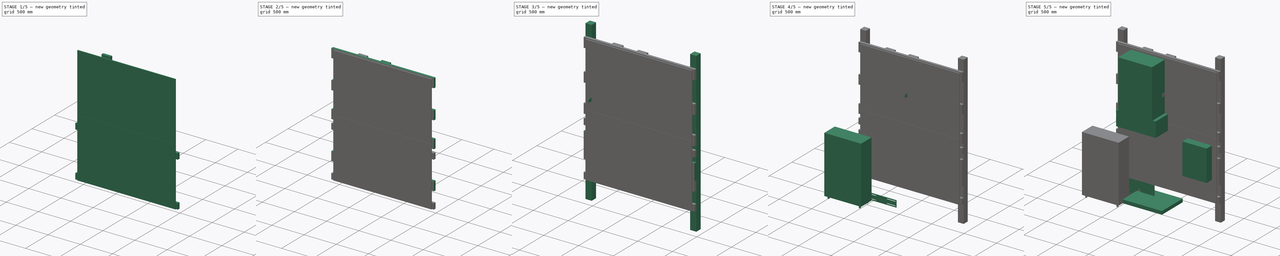
[diagram: build sequence overview — one tinted view per stage of 5, left to right]
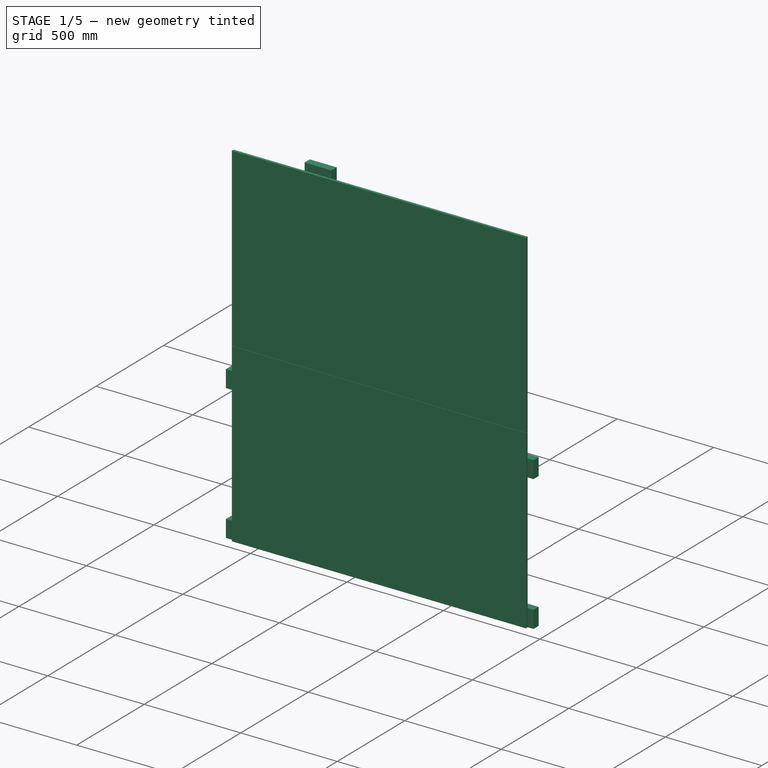
[diagram: stage 1 of 5 — iso view after this stage's code; geometry added in this stage tinted green]
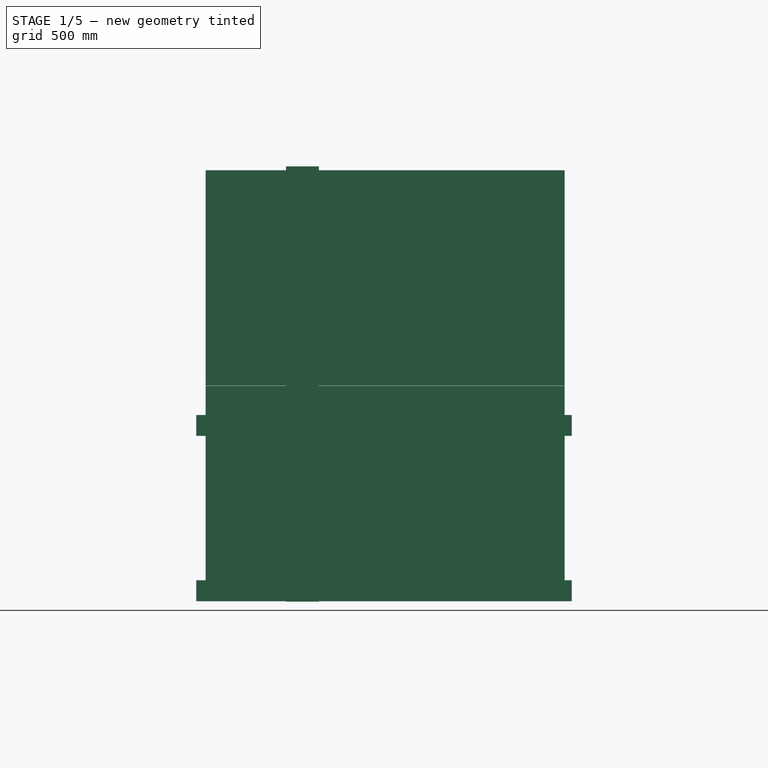
[diagram: stage 1 of 5 — front view after this stage's code; geometry added in this stage tinted green]
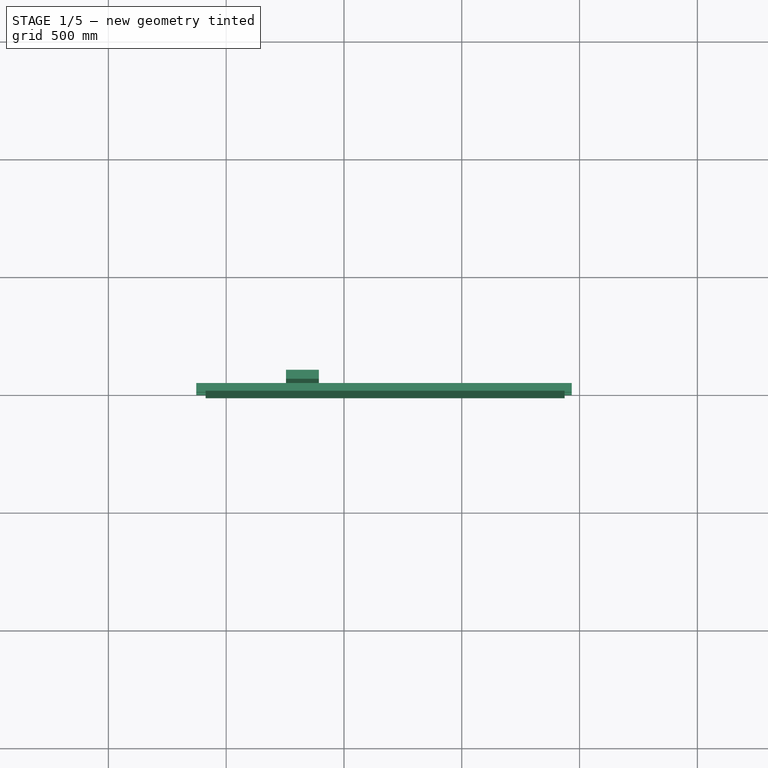
[diagram: stage 1 of 5 — top view after this stage's code; geometry added in this stage tinted green]
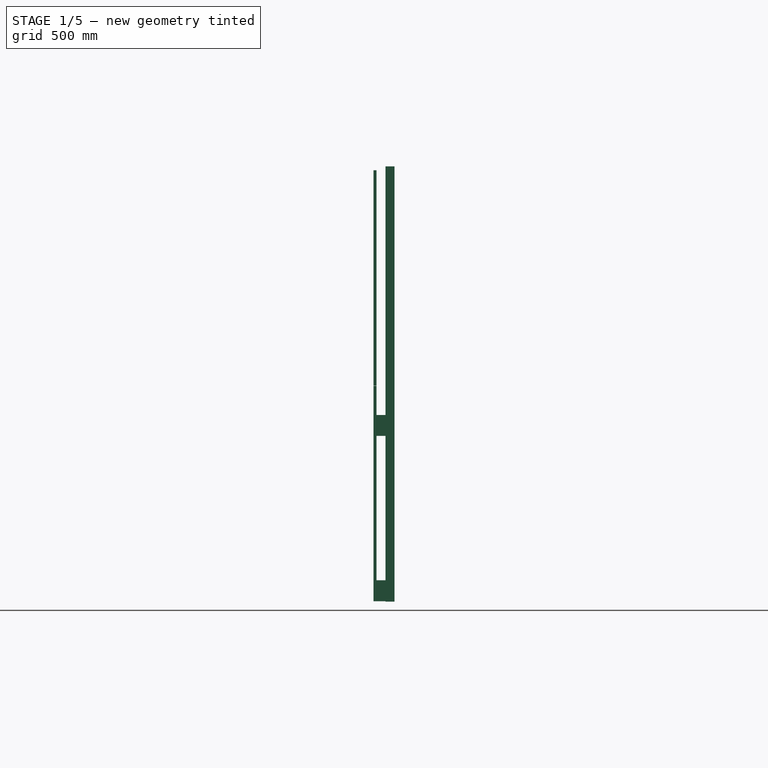
[diagram: stage 1 of 5 — right view after this stage's code; geometry added in this stage tinted green]
FCSTD DOCUMENT  (FreeCAD 1.0R39319 (Git))
Label: ESSandPVMount1
License: All rights reserved
LicenseURL: https://en.wikipedia.org/wiki/All_rights_reserved
objects: Part::Box×18, Sketcher::SketchObject×6, PartDesign::Pad×6, PartDesign::Body×4, App::DocumentObjectGroup×4, Part::Mirroring×1, App::LinkGroup×1
note: 53 computed .brp shape members not serialized (recipe doc carries the construction recipe); baked Part::Feature solids carry a one-line shape summary decoded from their .brp

FEATURE [Part::Box] Box010  label="Duraback3x5-1"
  AttacherType = Attacher::AttachEngine3D
  Height = 1524
  Length = 914.4
  Placement = pos=(-87.376,-12.7,1215.64) rot=(0,1,0;1.5708rad)
  Width = 12.7
FEATURE [Part::Box] Box011  label="Duraback3x5-2"
  AttacherType = Attacher::AttachEngine3D
  Height = 1524
  Length = 914.4
  Placement = pos=(-87.376,-12.7,2131.06) rot=(0,1,0;1.5708rad)
  Width = 12.7
FEATURE [Part::Box] Box018  label="Vert2x6-2"
  AttacherType = Attacher::AttachEngine3D
  Height = 139.7
  Length = 1847.85
  Placement = pos=(393.7,38.1,299.72) rot=(0,1,0;4.71239rad)
  Width = 38.1
FEATURE [Part::Box] Box019  label="Horiz2x4-2"
  AttacherType = Attacher::AttachEngine3D
  Height = 88.9
  Length = 1593.85
  Placement = pos=(-127,0,301.625) rot=(0,0,1;0rad)
  Width = 38.1
FEATURE [App::DocumentObjectGroup] Group  label="ESSAssembly"
  Group = -> [Box004,Box003,Body001,Body,Body002,Body003,Part__Mirroring001]
FEATURE [App::LinkGroup] LinkGroup  label="BatteryInverterLinkGroup"
  ElementList = -> [Group]
  LinkMode = 0
  Placement = pos=(127,-12.7,-5.08) rot=(0,0,1;0rad)
FEATURE [App::DocumentObjectGroup] Group003  label="Sheetrock"
  Group = -> [Box010,Box011]
FEATURE [Part::Box] Box020  label="Horiz2x4-003"
  AttacherType = Attacher::AttachEngine3D
  Height = 88.9
  Length = 1593.85
  Placement = pos=(-127,0,1003.3) rot=(0,0,1;0rad)
  Width = 38.1
FEATURE [App::DocumentObjectGroup] Group002  label="WoodMembers"
  Group = -> [Box,Box001,Box007,Box012,Box013,Box014,Box015,Box016,Box017,Box018,Box019,Box020]
FEATURE [App::DocumentObjectGroup] Group001  label="WoodFrame"
  Group = -> [Group002]
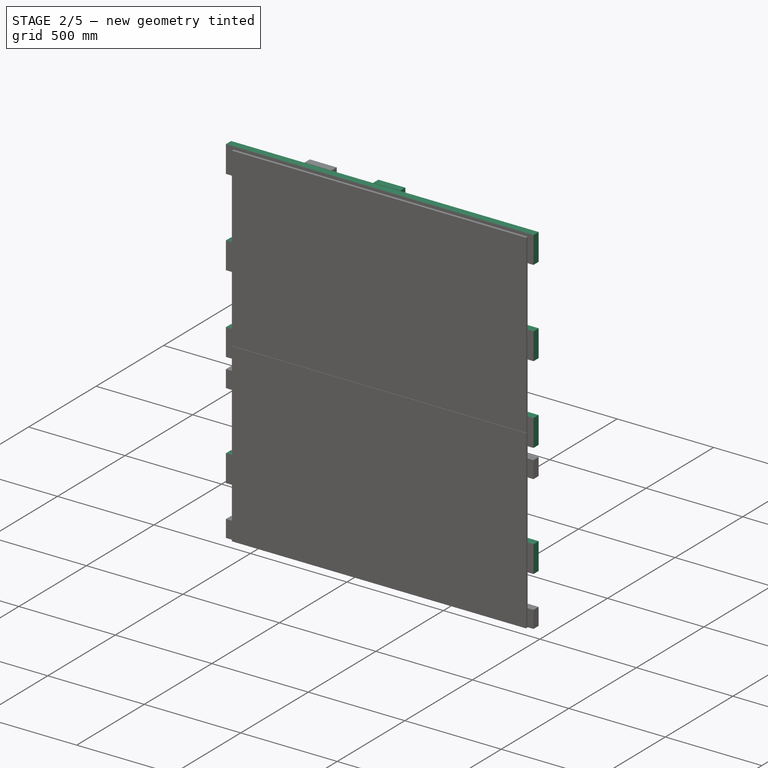
[diagram: stage 2 of 5 — iso view after this stage's code; geometry added in this stage tinted green]
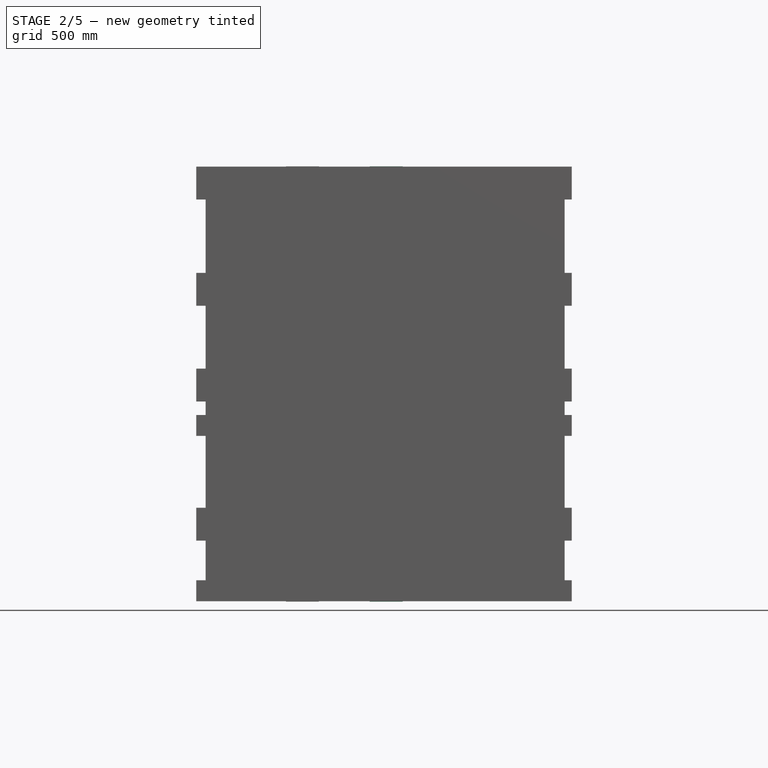
[diagram: stage 2 of 5 — front view after this stage's code; geometry added in this stage tinted green]
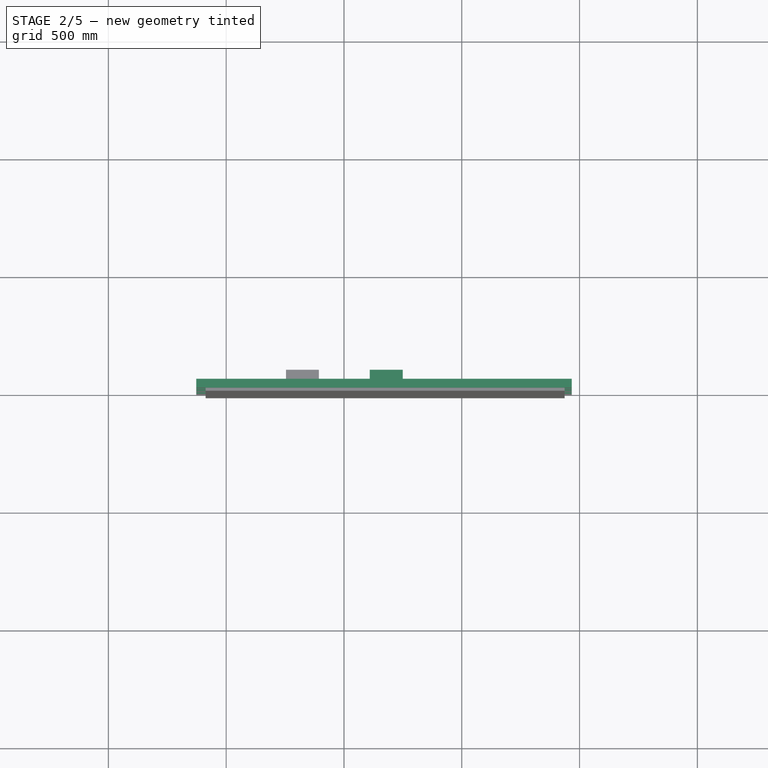
[diagram: stage 2 of 5 — top view after this stage's code; geometry added in this stage tinted green]
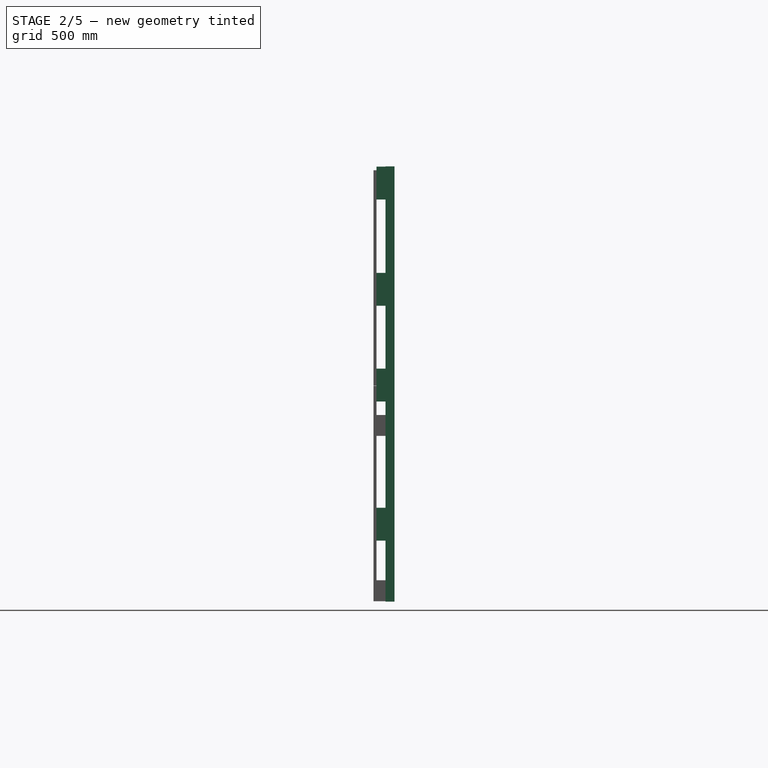
[diagram: stage 2 of 5 — right view after this stage's code; geometry added in this stage tinted green]
FEATURE [Part::Box] Box013  label="Horiz2x6-2"
  AttacherType = Attacher::AttachEngine3D
  Height = 139.7
  Length = 1593.85
  Placement = pos=(-127,0,558.8) rot=(0,0,1;0rad)
  Width = 38.1
FEATURE [PartDesign::Body] Body002  label="InverterMountingPlate"
  AllowCompound = false
  Group = -> [Sketch003,Pad003]
  Origin = -> Origin002
  Placement = pos=(147.32,0,2024.38) rot=(0,0,1;0rad)
  Tip = -> Pad003
FEATURE [Part::Box] Box014  label="Horiz2x6-3"
  AttacherType = Attacher::AttachEngine3D
  Height = 139.7
  Length = 1593.85
  Placement = pos=(-127,0,2006.6) rot=(0,0,1;0rad)
  Width = 38.1
FEATURE [Part::Box] Box015  label="Horiz2x6-4"
  AttacherType = Attacher::AttachEngine3D
  Height = 139.7
  Length = 1593.85
  Placement = pos=(-127,0,1555.75) rot=(0,0,1;0rad)
  Width = 38.1
FEATURE [Part::Box] Box016  label="Horiz2x6-5"
  AttacherType = Attacher::AttachEngine3D
  Height = 139.7
  Length = 1593.85
  Placement = pos=(-127,0,1149.35) rot=(0,0,1;0rad)
  Width = 38.1
FEATURE [PartDesign::Body] Body003  label="InverterLowerBracket"
  AllowCompound = false
  Group = -> [Sketch004,Pad004,Sketch005,Pad005]
  Origin = -> Origin003
  Placement = pos=(111.76,19.05,241.3) rot=(0,0,1;0rad)
  Tip = -> Pad005
FEATURE [Part::Box] Box017  label="Vert2x6-1"
  AttacherType = Attacher::AttachEngine3D
  Height = 139.7
  Length = 1847.85
  Placement = pos=(749.3,38.1,299.72) rot=(0,1,0;4.71239rad)
  Width = 38.1
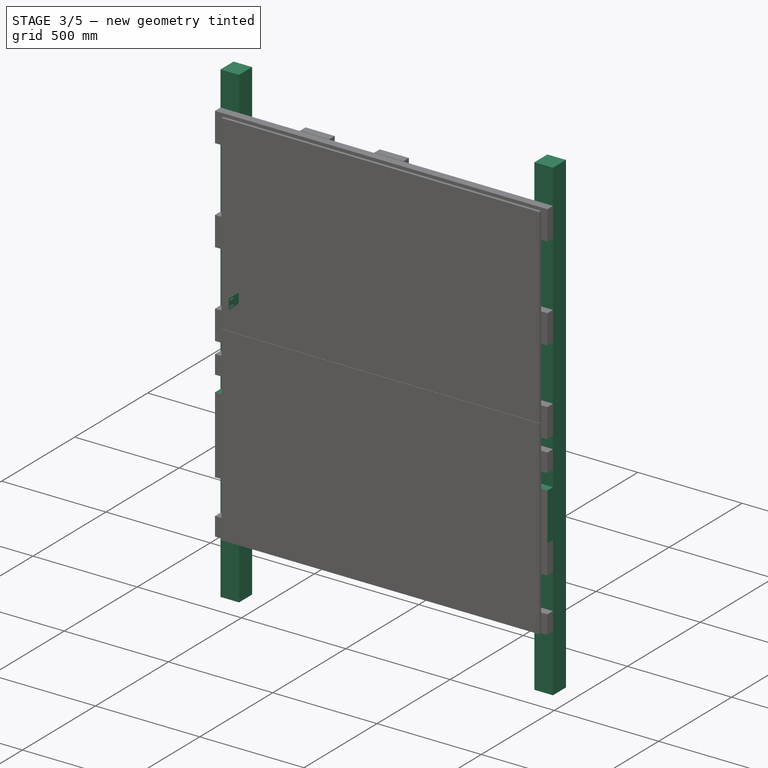
[diagram: stage 3 of 5 — iso view after this stage's code; geometry added in this stage tinted green]
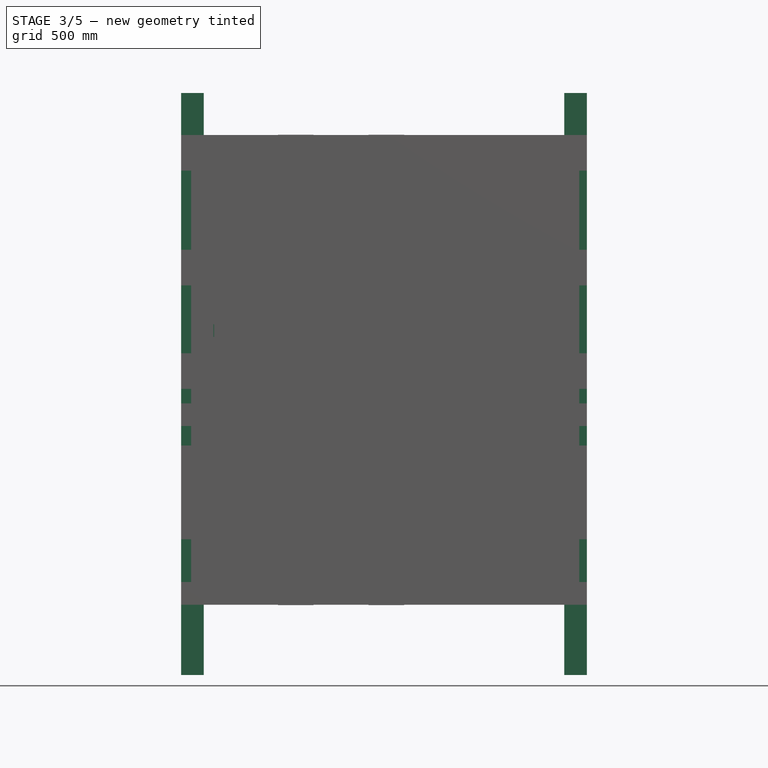
[diagram: stage 3 of 5 — front view after this stage's code; geometry added in this stage tinted green]
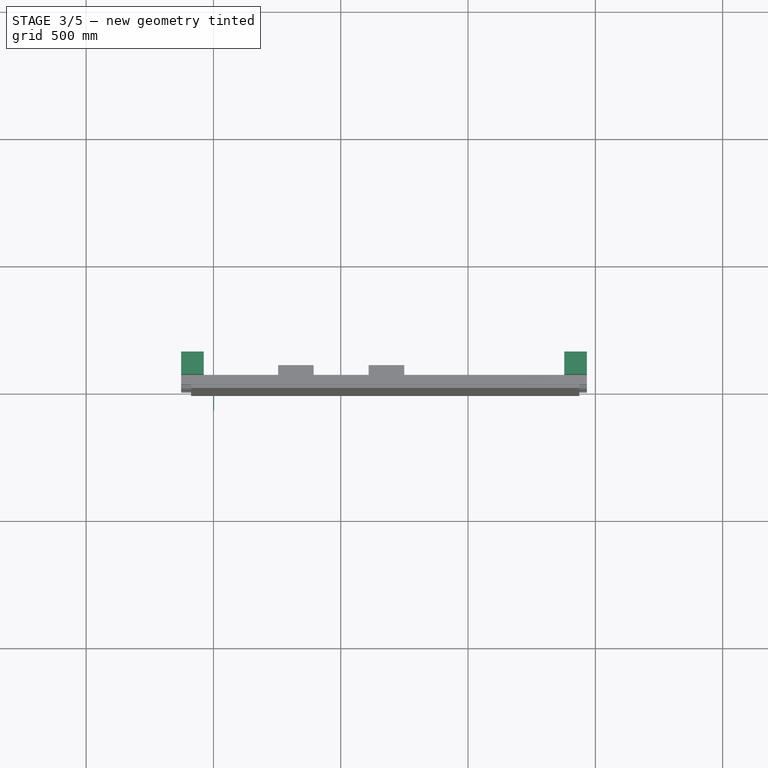
[diagram: stage 3 of 5 — top view after this stage's code; geometry added in this stage tinted green]
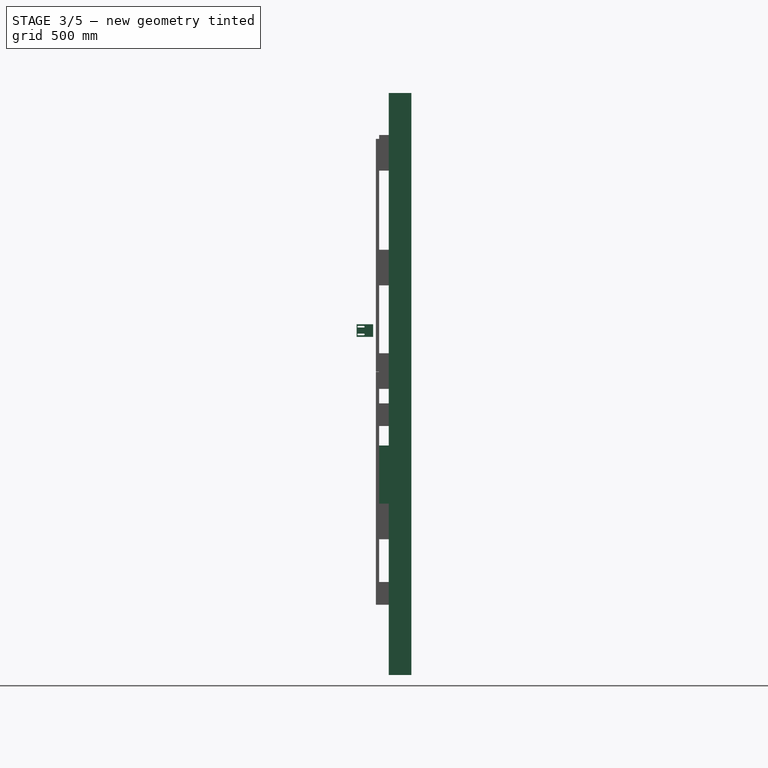
[diagram: stage 3 of 5 — right view after this stage's code; geometry added in this stage tinted green]
FEATURE [Part::Box] Box  label="Post1"
  AttacherType = Attacher::AttachEngine3D
  Height = 2286
  Length = 88.9
  Placement = pos=(-127,38.1,25.4) rot=(0,0,1;0rad)
  Width = 88.9
FEATURE [Part::Box] Box001  label="Post002"
  AttacherType = Attacher::AttachEngine3D
  Height = 2286
  Length = 88.9
  Placement = pos=(1377.95,38.1,25.4) rot=(0,0,1;0rad)
  Width = 88.9
FEATURE [PartDesign::Body] Body001  label="Battery001"
  AllowCompound = false
  Group = -> [Sketch001,Pad001,Sketch002,Pad002]
  Origin = -> Origin001
  Placement = pos=(577.85,0,241.3) rot=(0,0,1;0rad)
  Tip = -> Pad002
FEATURE [Part::Box] Box007  label="Horiz2x6-1"
  AttacherType = Attacher::AttachEngine3D
  Height = 139.7
  Length = 1593.85
  Placement = pos=(-127,0,787.4) rot=(0,0,1;0rad)
  Width = 38.1
FEATURE [Part::Box] Box012  label="Horiz2x4-1"
  AttacherType = Attacher::AttachEngine3D
  Height = 88.9
  Length = 1593.85
  Placement = pos=(-127,0,698.5) rot=(0,0,1;0rad)
  Width = 38.1
FEATURE [Sketcher::SketchObject] Sketch004
  ArcFitTolerance = 1e-06
  AttachmentSupport = -> [YZ_Plane003]
  FullyConstrained = false
  MakeInternals = false
  MapMode = 5
  Placement = pos=(0,0,0) rot=(0.57735,0.57735,0.57735;2.0944rad)
  sketch-geometry (12):
    g0: LineSegment StartX=-23.449 StartY=1353.66 StartZ=0 EndX=-23.449 EndY=1402.88 EndZ=0
    g1: LineSegment StartX=-23.449 StartY=1402.88 StartZ=0 EndX=-88.473 EndY=1402.88 EndZ=0
    g2: LineSegment StartX=-88.473 StartY=1402.88 StartZ=0 EndX=-88.473 EndY=1353.66 EndZ=0
    g3: LineSegment StartX=-88.473 StartY=1353.66 StartZ=0 EndX=-23.449 EndY=1353.66 EndZ=0
    g4: ArcOfCircle CenterX=-82.123 CenterY=1393.35 CenterZ=0 NormalX=0 NormalY=0 NormalZ=1 AngleXU=0 Radius=3.175 StartAngle=1.5708 EndAngle=4.71239
    g5: ArcOfCircle CenterX=-59.898 CenterY=1393.35 CenterZ=0 NormalX=0 NormalY=0 NormalZ=1 AngleXU=0 Radius=3.175 StartAngle=4.71239 EndAngle=7.85398
    g6: LineSegment StartX=-82.123 StartY=1396.53 StartZ=0 EndX=-59.898 EndY=1396.53 EndZ=0
    g7: LineSegment StartX=-82.123 StartY=1390.18 StartZ=0 EndX=-59.898 EndY=1390.18 EndZ=0
    g8: ArcOfCircle CenterX=-82.123 CenterY=1363.19 CenterZ=0 NormalX=0 NormalY=0 NormalZ=1 AngleXU=0 Radius=3.175 StartAngle=1.5708 EndAngle=4.71239
    g9: ArcOfCircle CenterX=-59.898 CenterY=1363.19 CenterZ=0 NormalX=0 NormalY=0 NormalZ=1 AngleXU=0 Radius=3.175 StartAngle=4.71239 EndAngle=7.85398
    g10: LineSegment StartX=-82.123 StartY=1366.36 StartZ=0 EndX=-59.898 EndY=1366.36 EndZ=0
    g11: LineSegment StartX=-82.123 StartY=1360.01 StartZ=0 EndX=-59.898 EndY=1360.01 EndZ=0
  constraints (30):
    c: Coincident(g0,g1)
    c: Coincident(g1,g2)
    c: Coincident(g2,g3)
    c: Coincident(g3,g0)
    c: Vertical(g0)
    c: Vertical(g2)
    c: Horizontal(g1)
    c: Horizontal(g3)
    c: DistanceX(g1,g1) = 65.024
    c: DistanceY(g2,g2) = 49.2125
    c: Tangent(g4,g6) = 1.5708
    c: Tangent(g4,g7) = -1.5708
    c: Tangent(g5,g6) = 1.5708
    c: Tangent(g5,g7) = -1.5708
    c: Equal(g4,g5)
    c: Horizontal(g7)
    c: DistanceX(g4,g5) = 22.225
    c: DistanceX(g1,g4) = 6.35
    c: DistanceY(g4,g1) = 6.35
    c: DistanceY(g4,g1) = 12.7
    c: Tangent(g8,g10) = 1.5708
    c: Tangent(g8,g11) = -1.5708
    c: Tangent(g9,g10) = 1.5708
    c: Tangent(g9,g11) = -1.5708
    c: Equal(g8,g9)
    c: Horizontal(g11)
    c: DistanceX(g8,g9) = 22.225
    c: DistanceY(g2,g8) = 12.7
    c: DistanceY(g2,g8) = 6.35
    c: DistanceX(g2,g8) = 6.35
FEATURE [PartDesign::Pad] Pad004
  Direction = (1,0,0)
  Length = 2.54
  Length2 = 10
  Placement = pos=(0,0,0) rot=(1,1,1;2.0944rad)
  Profile = -> Sketch004
  ReferenceAxis = -> Sketch004 [N_Axis]
  Refine = true
  Suppressed = false
  Type = 0
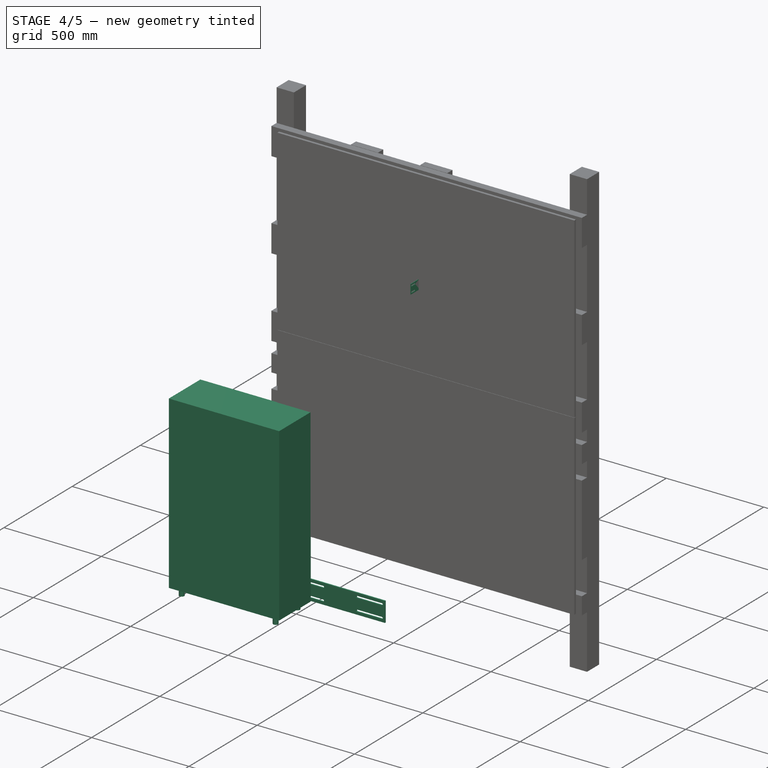
[diagram: stage 4 of 5 — iso view after this stage's code; geometry added in this stage tinted green]
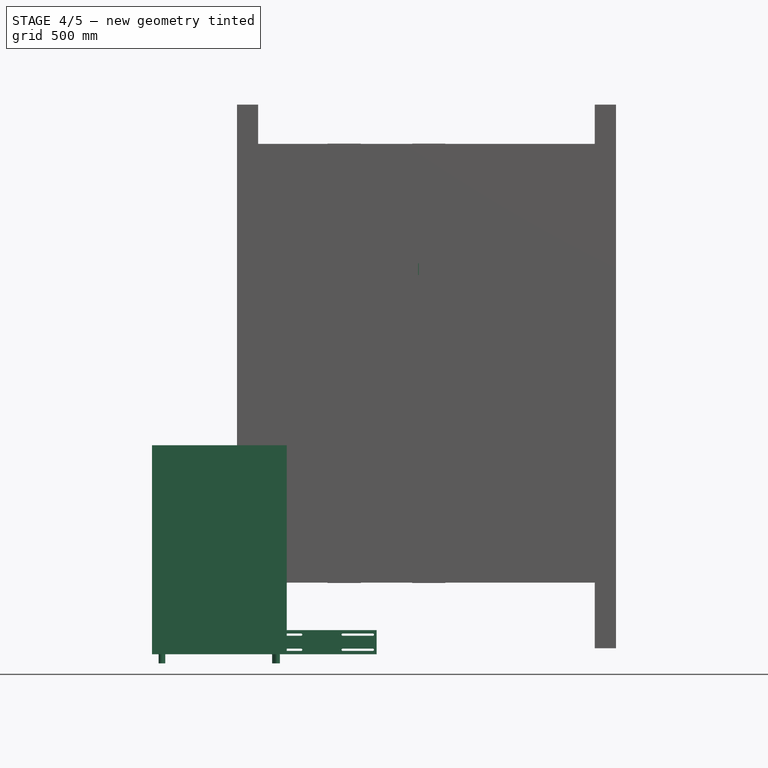
[diagram: stage 4 of 5 — front view after this stage's code; geometry added in this stage tinted green]
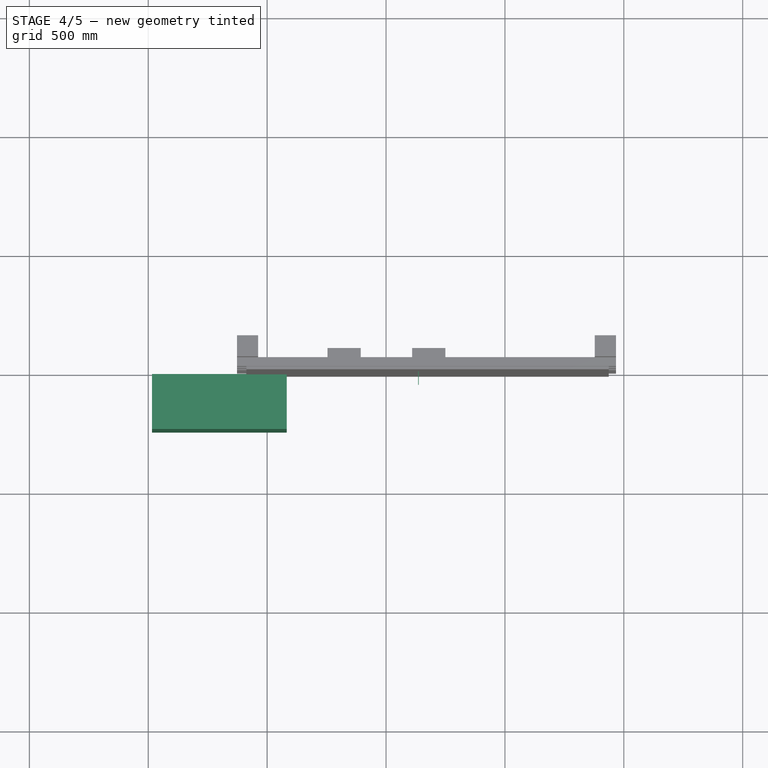
[diagram: stage 4 of 5 — top view after this stage's code; geometry added in this stage tinted green]
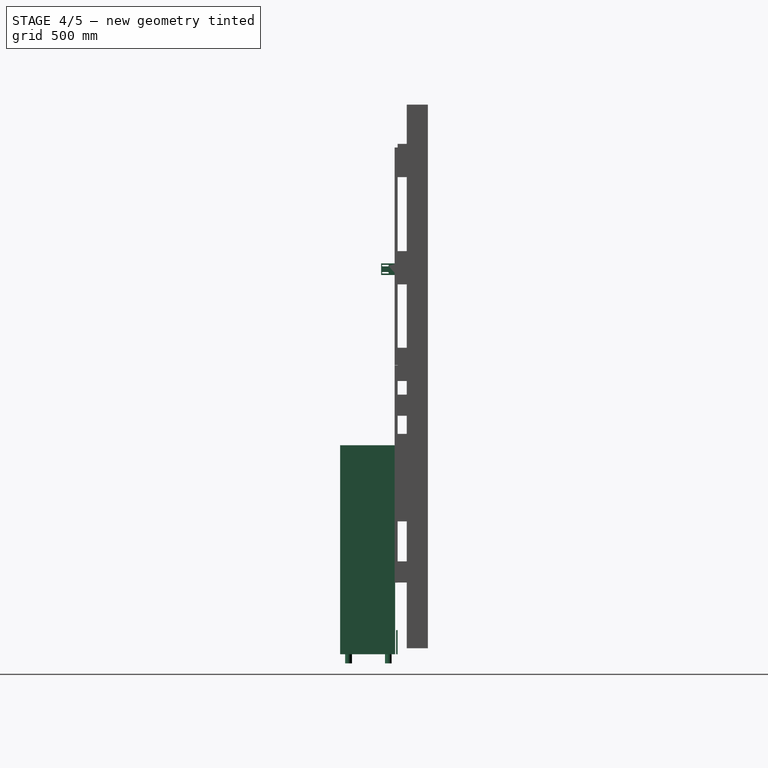
[diagram: stage 4 of 5 — right view after this stage's code; geometry added in this stage tinted green]
FEATURE [PartDesign::Body] Body  label="BatteryMountingPlate"
  AllowCompound = false
  Group = -> [Sketch,Pad]
  Origin = -> Origin
  Placement = pos=(139.7,0,440.69) rot=(0,0,1;0rad)
  Tip = -> Pad
FEATURE [Sketcher::SketchObject] Sketch001
  ArcFitTolerance = 1e-06
  AttachmentSupport = -> [XY_Plane001]
  FullyConstrained = false
  MakeInternals = false
  MapMode = 5
  sketch-geometry (4):
    g0: LineSegment StartX=82.3802 StartY=-10.9149 StartZ=0 EndX=-484.04 EndY=-10.9149 EndZ=0
    g1: LineSegment StartX=-484.04 StartY=-10.9149 StartZ=0 EndX=-484.04 EndY=-242.055 EndZ=0
    g2: LineSegment StartX=-484.04 StartY=-242.055 StartZ=0 EndX=82.3802 EndY=-242.055 EndZ=0
    g3: LineSegment StartX=82.3802 StartY=-242.055 StartZ=0 EndX=82.3802 EndY=-10.9149 EndZ=0
  constraints (10):
    c: Coincident(g0,g1)
    c: Coincident(g1,g2)
    c: Coincident(g2,g3)
    c: Coincident(g3,g0)
    c: Horizontal(g0)
    c: Horizontal(g2)
    c: Vertical(g1)
    c: Vertical(g3)
    c: DistanceX(g2,g2) = 566.42
    c: DistanceY(g1,g1) = 231.14
FEATURE [PartDesign::Pad] Pad001
  Direction = (0,0,1)
  Length = 878.84
  Length2 = 10
  Profile = -> Sketch001
  ReferenceAxis = -> Sketch001 [N_Axis]
  Refine = true
  Suppressed = false
  Type = 0
FEATURE [Sketcher::SketchObject] Sketch002
  ArcFitTolerance = 1e-06
  AttachmentSupport = -> [Pad001]
  FullyConstrained = false
  MakeInternals = false
  MapMode = 5
  Placement = pos=(0,0,0) rot=(1,0,0;3.14159rad)
  sketch-geometry (4):
    g0: Circle CenterX=-443.812 CenterY=204.743 CenterZ=0 NormalX=0 NormalY=0 NormalZ=1 AngleXU=0 Radius=12.7
    g1: Circle CenterX=-441.406 CenterY=40.3856 CenterZ=0 NormalX=0 NormalY=0 NormalZ=1 AngleXU=0 Radius=12.7
    g2: Circle CenterX=40.8128 CenterY=208.315 CenterZ=0 NormalX=0 NormalY=0 NormalZ=1 AngleXU=0 Radius=12.7
    g3: Circle CenterX=33.3659 CenterY=38.1016 CenterZ=0 NormalX=0 NormalY=0 NormalZ=1 AngleXU=0 Radius=12.7
  constraints (4):
    c: Diameter(g0) = 25.4
    c: Diameter(g1) = 25.4
    c: Diameter(g2) = 25.4
    c: Diameter(g3) = 25.4
FEATURE [PartDesign::Pad] Pad002
  BaseFeature = -> Pad001
  Direction = (0,0,-1)
  Length = 38.1
  Length2 = 10
  Profile = -> Sketch002
  ReferenceAxis = -> Sketch002 [N_Axis]
  Refine = true
  Suppressed = false
  Type = 0
FEATURE [Sketcher::SketchObject] Sketch003
  ArcFitTolerance = 1e-06
  AttachmentSupport = -> [XZ_Plane002]
  FullyConstrained = true
  MakeInternals = false
  MapMode = 5
  Placement = pos=(0,0,0) rot=(1,0,0;1.5708rad)
  sketch-geometry (20):
    g0: LineSegment StartX=0 StartY=0 StartZ=0 EndX=460.375 EndY=0 EndZ=0
    g1: LineSegment StartX=460.375 StartY=0 StartZ=0 EndX=460.375 EndY=101.6 EndZ=0
    g2: LineSegment StartX=460.375 StartY=101.6 StartZ=0 EndX=0 EndY=101.6 EndZ=0
    g3: LineSegment StartX=0 StartY=101.6 StartZ=0 EndX=0 EndY=0 EndZ=0
    g4: ArcOfCircle CenterX=15.875 CenterY=19.05 CenterZ=0 NormalX=0 NormalY=0 NormalZ=1 AngleXU=0 Radius=4.7625 StartAngle=1.5708 EndAngle=4.71239
    g5: ArcOfCircle CenterX=142.875 CenterY=19.05 CenterZ=0 NormalX=0 NormalY=0 NormalZ=1 AngleXU=0 Radius=4.7625 StartAngle=4.71239 EndAngle=7.85398
    g6: LineSegment StartX=15.875 StartY=23.8125 StartZ=0 EndX=142.875 EndY=23.8125 EndZ=0
    g7: LineSegment StartX=15.875 StartY=14.2875 StartZ=0 EndX=142.875 EndY=14.2875 EndZ=0
    g8: ArcOfCircle CenterX=15.875 CenterY=82.55 CenterZ=0 NormalX=0 NormalY=0 NormalZ=1 AngleXU=0 Radius=4.7625 StartAngle=1.5708 EndAngle=4.71239
    g9: ArcOfCircle CenterX=142.875 CenterY=82.55 CenterZ=0 NormalX=0 NormalY=0 NormalZ=1 AngleXU=0 Radius=4.7625 StartAngle=4.71239 EndAngle=7.85398
    g10: LineSegment StartX=15.875 StartY=87.3125 StartZ=0 EndX=142.875 EndY=87.3125 EndZ=0
    g11: LineSegment StartX=15.875 StartY=77.7875 StartZ=0 EndX=142.875 EndY=77.7875 EndZ=0
    g12: ArcOfCircle CenterX=317.5 CenterY=19.05 CenterZ=0 NormalX=0 NormalY=0 NormalZ=1 AngleXU=0 Radius=4.7625 StartAngle=1.5708 EndAngle=4.71239
    g13: ArcOfCircle CenterX=444.5 CenterY=19.05 CenterZ=0 NormalX=0 NormalY=0 NormalZ=1 AngleXU=0 Radius=4.7625 StartAngle=4.71239 EndAngle=7.85398
    g14: LineSegment StartX=317.5 StartY=23.8125 StartZ=0 EndX=444.5 EndY=23.8125 EndZ=0
    g15: LineSegment StartX=317.5 StartY=14.2875 StartZ=0 EndX=444.5 EndY=14.2875 EndZ=0
    g16: ArcOfCircle CenterX=317.5 CenterY=82.55 CenterZ=0 NormalX=0 NormalY=0 NormalZ=1 AngleXU=0 Radius=4.7625 StartAngle=1.5708 EndAngle=4.71239
    g17: ArcOfCircle CenterX=444.5 CenterY=82.55 CenterZ=0 NormalX=0 NormalY=0 NormalZ=1 AngleXU=0 Radius=4.7625 StartAngle=4.71239 EndAngle=7.85398
    g18: LineSegment StartX=317.5 StartY=87.3125 StartZ=0 EndX=444.5 EndY=87.3125 EndZ=0
    g19: LineSegment StartX=317.5 StartY=77.7875 StartZ=0 EndX=444.5 EndY=77.7875 EndZ=0
  constraints (51):
    c: Coincident(g0,g1)
    c: Coincident(g1,g2)
    c: Coincident(g2,g3)
    c: Coincident(g3,g0)
    c: Horizontal(g0)
    c: Horizontal(g2)
    c: Vertical(g1)
    c: Vertical(g3)
    c: Coincident(g0,g-1)
    c: DistanceX(g0,g0) = 460.375
    c: DistanceY(g3,g3) = 101.6
    c: Tangent(g4,g6) = 1.5708
    c: Tangent(g4,g7) = -1.5708
    c: Tangent(g5,g6) = 1.5708
    c: Tangent(g5,g7) = -1.5708
    c: Equal(g4,g5)
    c: Horizontal(g7)
    c: DistanceX(g7,g7) = 127
    c: DistanceY(g5,g5) = 9.525
    c: DistanceY(g0,g5) = 19.05
    c: Tangent(g8,g10) = 1.5708
    c: Tangent(g8,g11) = -1.5708
    c: Tangent(g9,g10) = 1.5708
    c: Tangent(g9,g11) = -1.5708
    c: Equal(g8,g9)
    c: Horizontal(g11)
    c: DistanceX(g11,g11) = 127
    c: DistanceY(g9,g9) = 9.525
    c: DistanceY(g8,g2) = 19.05
    c: DistanceX(g2,g8) = 15.875
    c: DistanceX(g0,g4) = 15.875
    c: Tangent(g12,g14) = 1.5708
    c: Tangent(g12,g15) = -1.5708
    c: Tangent(g13,g14) = 1.5708
    c: Tangent(g13,g15) = -1.5708
    c: Equal(g12,g13)
    c: Horizontal(g15)
    c: DistanceX(g15,g15) = 127
    c: DistanceY(g13,g13) = 9.525
    c: Tangent(g16,g18) = 1.5708
    c: Tangent(g16,g19) = -1.5708
    c: Tangent(g17,g18) = 1.5708
    c: Tangent(g17,g19) = -1.5708
    c: Equal(g16,g17)
    c: Horizontal(g19)
    c: DistanceX(g19,g19) = 127
    c: DistanceY(g17,g17) = 9.525
    c: DistanceX(g17,g1) = 15.875
    c: DistanceX(g13,g0) = 15.875
    c: DistanceY(g0,g13) = 19.05
    c: DistanceY(g17,g1) = 19.05
FEATURE [PartDesign::Pad] Pad003
  Direction = (0,-1,2e-16)
  Length = 6.35
  Length2 = 10
  Placement = pos=(0,0,0) rot=(1,0,0;1.5708rad)
  Profile = -> Sketch003
  ReferenceAxis = -> Sketch003 [N_Axis]
  Refine = true
  Suppressed = false
  Type = 0
FEATURE [Sketcher::SketchObject] Sketch005
  ArcFitTolerance = 1e-06
  AttachmentSupport = -> [Pad004]
  FullyConstrained = false
  MakeInternals = false
  MapMode = 5
  Placement = pos=(-5.2e-15,-23.449,0) rot=(0.57735,0.57735,0.57735;4.18879rad)
  sketch-geometry (8):
    g0: LineSegment StartX=1353.66 StartY=2.5396 StartZ=0 EndX=1353.66 EndY=-32.3854 EndZ=0
    g1: LineSegment StartX=1353.66 StartY=-32.3854 StartZ=0 EndX=1403.01 EndY=-32.3854 EndZ=0
    g2: LineSegment StartX=1403.01 StartY=-32.3854 StartZ=0 EndX=1403.01 EndY=2.5396 EndZ=0
    g3: LineSegment StartX=1403.01 StartY=2.5396 StartZ=0 EndX=1353.66 EndY=2.5396 EndZ=0
    g4: ArcOfCircle CenterX=1364.31 CenterY=-17.3041 CenterZ=0 NormalX=0 NormalY=0 NormalZ=1 AngleXU=0 Radius=5.55625 StartAngle=1.5708 EndAngle=4.71239
    g5: ArcOfCircle CenterX=1390.11 CenterY=-17.3041 CenterZ=0 NormalX=0 NormalY=0 NormalZ=1 AngleXU=0 Radius=5.55625 StartAngle=4.71239 EndAngle=7.85398
    g6: LineSegment StartX=1364.31 StartY=-11.7479 StartZ=0 EndX=1390.11 EndY=-11.7479 EndZ=0
    g7: LineSegment StartX=1364.31 StartY=-22.8604 StartZ=0 EndX=1390.11 EndY=-22.8604 EndZ=0
  constraints (17):
    c: Coincident(g0,g1)
    c: Coincident(g1,g2)
    c: Coincident(g2,g3)
    c: Coincident(g3,g0)
    c: Vertical(g0)
    c: Vertical(g2)
    c: Horizontal(g1)
    c: Horizontal(g3)
    c: DistanceY(g0,g0) = 34.925
    c: Tangent(g4,g6) = 1.5708
    c: Tangent(g4,g7) = -1.5708
    c: Tangent(g5,g6) = 1.5708
    c: Tangent(g5,g7) = -1.5708
    c: Equal(g4,g5)
    c: Horizontal(g6)
    c: DistanceY(g0,g4) = 9.525
    c: DistanceY(g4,g0) = 14.2875
FEATURE [PartDesign::Pad] Pad005
  BaseFeature = -> Pad004
  Direction = (0,1,0)
  Length = 2.54
  Length2 = 10
  Placement = pos=(0,0,0) rot=(1,1,1;2.0944rad)
  Profile = -> Sketch005
  ReferenceAxis = -> Sketch005 [N_Axis]
  Refine = true
  Suppressed = false
  Type = 0
FEATURE [Part::Mirroring] Part__Mirroring001  label="InverterLowerBracket (Mirror #2)"
  Base = (0,0,0)
  Normal = (1,0,0)
  Placement = pos=(749.3,0,0) rot=(0,0,1;0rad)
  Source = -> Body003
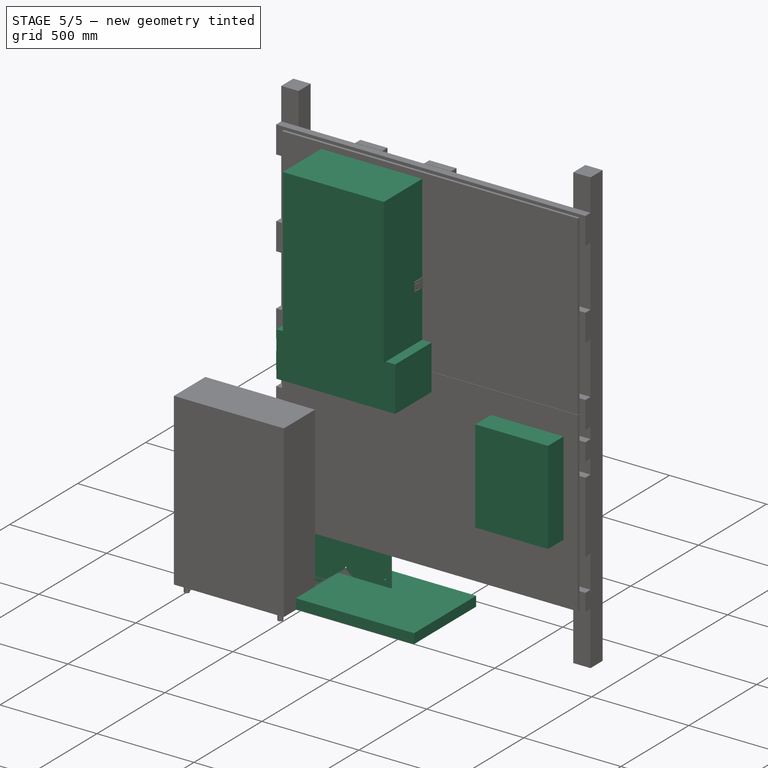
[diagram: stage 5 of 5 — iso view after this stage's code; geometry added in this stage tinted green]
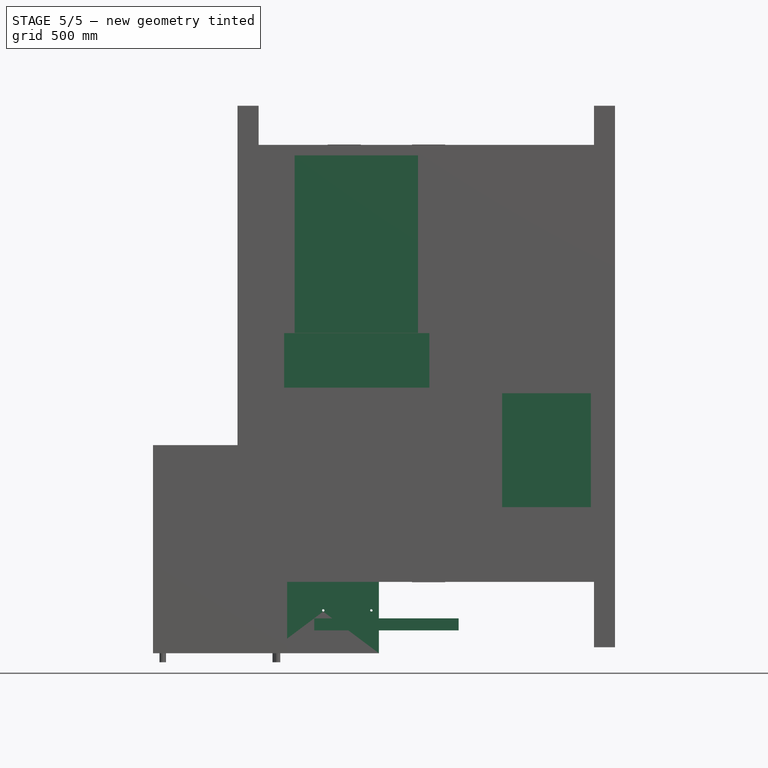
[diagram: stage 5 of 5 — front view after this stage's code; geometry added in this stage tinted green]
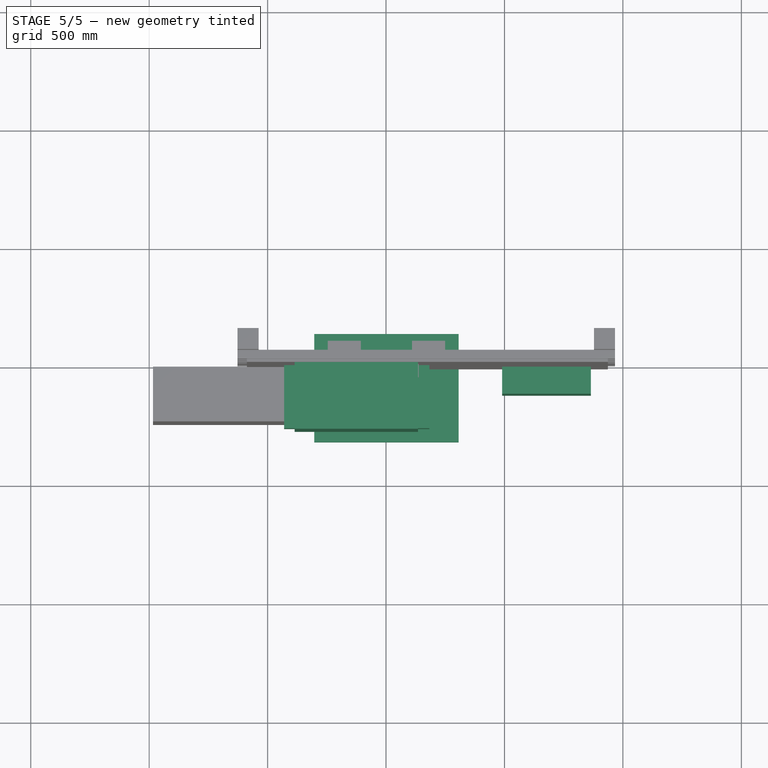
[diagram: stage 5 of 5 — top view after this stage's code; geometry added in this stage tinted green]
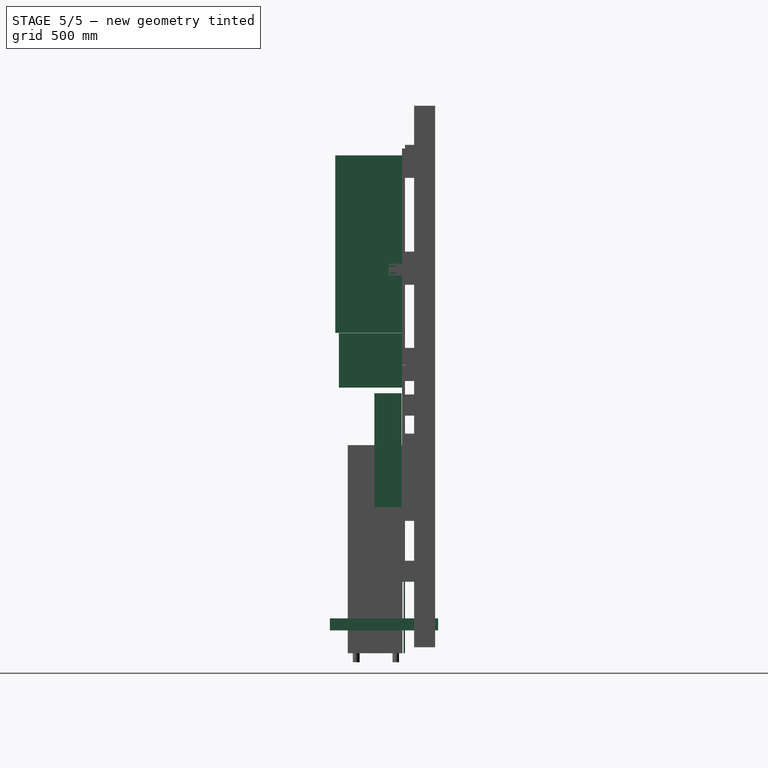
[diagram: stage 5 of 5 — right view after this stage's code; geometry added in this stage tinted green]
FEATURE [Part::Box] Box003  label="Inverter"
  AttacherType = Attacher::AttachEngine3D
  Height = 749.3
  Length = 284.48
  Placement = pos=(635,-294.64,1352.55) rot=(0,0,1;1.5708rad)
  Width = 520.7
FEATURE [Part::Box] Box004  label="ConduitBox"
  AttacherType = Attacher::AttachEngine3D
  Height = 230.124
  Length = 612.902
  Placement = pos=(69.85,-279.4,1121.41) rot=(0,0,1;0rad)
  Width = 268.478
FEATURE [Part::Box] Box005  label="SquareDSubpanel"
  AttacherType = Attacher::AttachEngine3D
  Height = 480.568
  Length = 114.808
  Placement = pos=(1365,-129.54,616.966) rot=(0,0,1;1.5708rad)
  Width = 374.65
FEATURE [Part::Box] Box006  label="Paver"
  AttacherType = Attacher::AttachEngine3D
  Height = 50.8
  Length = 457.2
  Placement = pos=(806.45,-317.5,96.52) rot=(0,0,1;1.5708rad)
  Width = 609.6
FEATURE [Sketcher::SketchObject] Sketch
  ArcFitTolerance = 1e-06
  AttachmentSupport = -> [XZ_Plane]
  FullyConstrained = true
  MakeInternals = false
  MapMode = 5
  Placement = pos=(0,0,0) rot=(1,0,0;1.5708rad)
  sketch-geometry (10):
    g0: LineSegment StartX=0 StartY=0 StartZ=0 EndX=469.9 EndY=0 EndZ=0
    g1: LineSegment StartX=469.9 StartY=0 StartZ=0 EndX=469.9 EndY=500.38 EndZ=0
    g2: LineSegment StartX=469.9 StartY=500.38 StartZ=0 EndX=0 EndY=500.38 EndZ=0
    g3: LineSegment StartX=0 StartY=500.38 StartZ=0 EndX=0 EndY=0 EndZ=0
    g4: Circle CenterX=31.75 CenterY=433.705 CenterZ=0 NormalX=0 NormalY=0 NormalZ=1 AngleXU=0 Radius=5
    g5: Circle CenterX=438.15 CenterY=433.705 CenterZ=0 NormalX=0 NormalY=0 NormalZ=1 AngleXU=0 Radius=5
    g6: Circle CenterX=31.75 CenterY=180.975 CenterZ=0 NormalX=0 NormalY=0 NormalZ=1 AngleXU=0 Radius=5
    g7: Circle CenterX=438.15 CenterY=180.975 CenterZ=0 NormalX=0 NormalY=0 NormalZ=1 AngleXU=0 Radius=5
    g8: Circle CenterX=234.95 CenterY=180.975 CenterZ=0 NormalX=0 NormalY=0 NormalZ=1 AngleXU=0 Radius=5
    g9: Circle CenterX=234.95 CenterY=433.705 CenterZ=0 NormalX=0 NormalY=0 NormalZ=1 AngleXU=0 Radius=5
  constraints (29):
    c: Coincident(g0,g1)
    c: Coincident(g1,g2)
    c: Coincident(g2,g3)
    c: Coincident(g3,g0)
    c: Horizontal(g0)
    c: Horizontal(g2)
    c: Vertical(g1)
    c: Vertical(g3)
    c: Coincident(g0,g-1)
    c: DistanceX(g0,g0) = 469.9
    c: DistanceY(g3,g3) = 500.38
    c: Diameter(g4) = 10
    c: Diameter(g5) = 10
    c: Diameter(g6) = 10
    c: Diameter(g7) = 10
    c: DistanceY(g5,g1) = 66.675
    c: DistanceY(g4,g2) = 66.675
    c: DistanceX(g5,g1) = 31.75
    c: DistanceY(g0,g7) = 180.975
    c: DistanceX(g0,g6) = 31.75
    c: DistanceY(g0,g6) = 180.975
    c: Diameter(g8) = 10
    c: DistanceX(g6,g8) = 203.2
    c: Diameter(g9) = 10
    c: DistanceX(g4,g9) = 203.2
    c: DistanceX(g9,g5) = 203.2
    c: DistanceY(g9,g2) = 66.675
    c: DistanceX(g8,g7) = 203.2
    c: DistanceY(g0,g8) = 180.975
FEATURE [PartDesign::Pad] Pad
  Direction = (0,-1,2e-16)
  Length = 6.35
  Length2 = 10
  Placement = pos=(0,0,0) rot=(1,0,0;1.5708rad)
  Profile = -> Sketch
  ReferenceAxis = -> Sketch [N_Axis]
  Refine = true
  Suppressed = false
  Type = 0
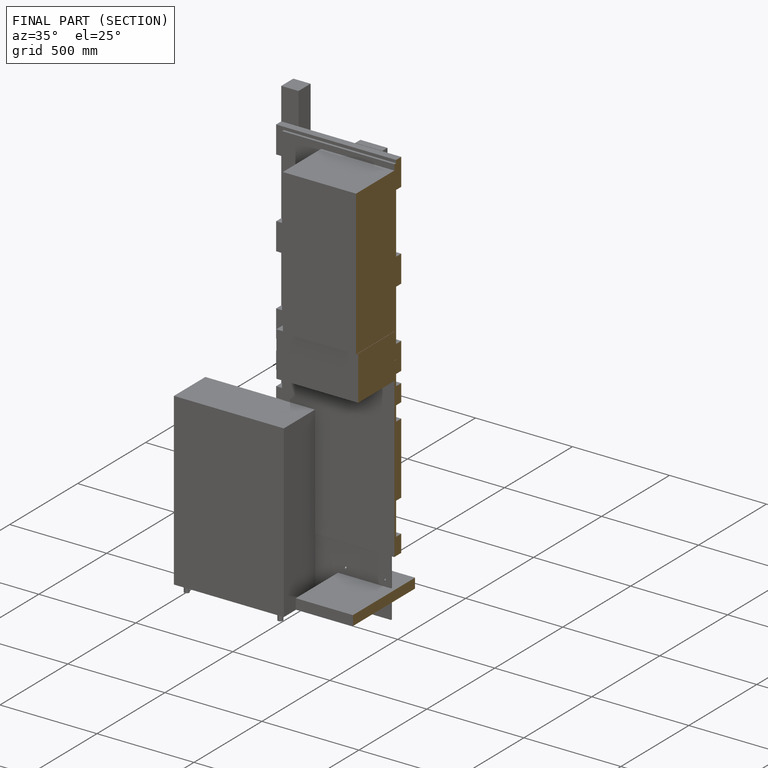
[diagram: finished part — half-section view (interior)]
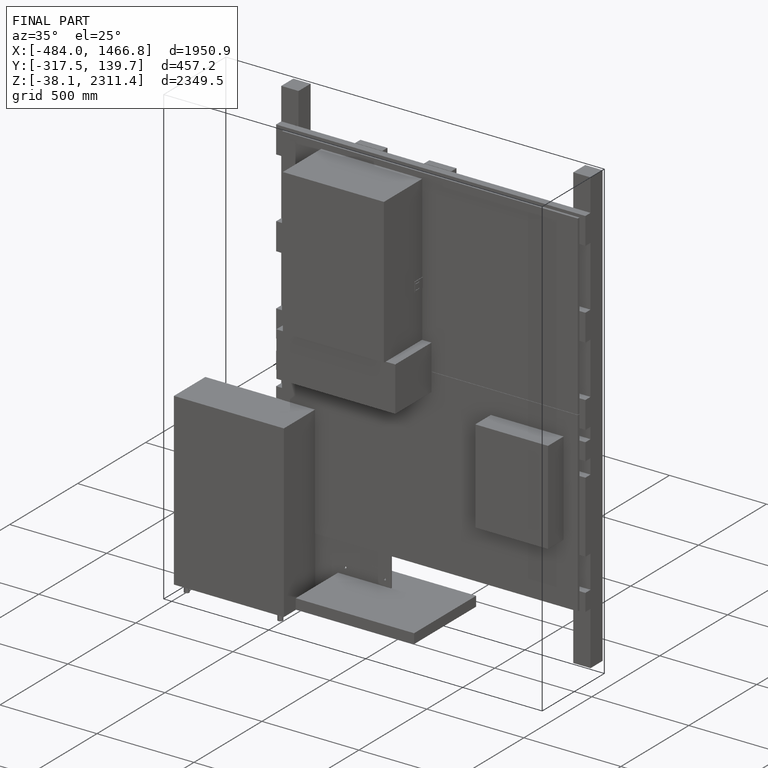
[diagram: finished part — iso view with bounding-box wireframe]
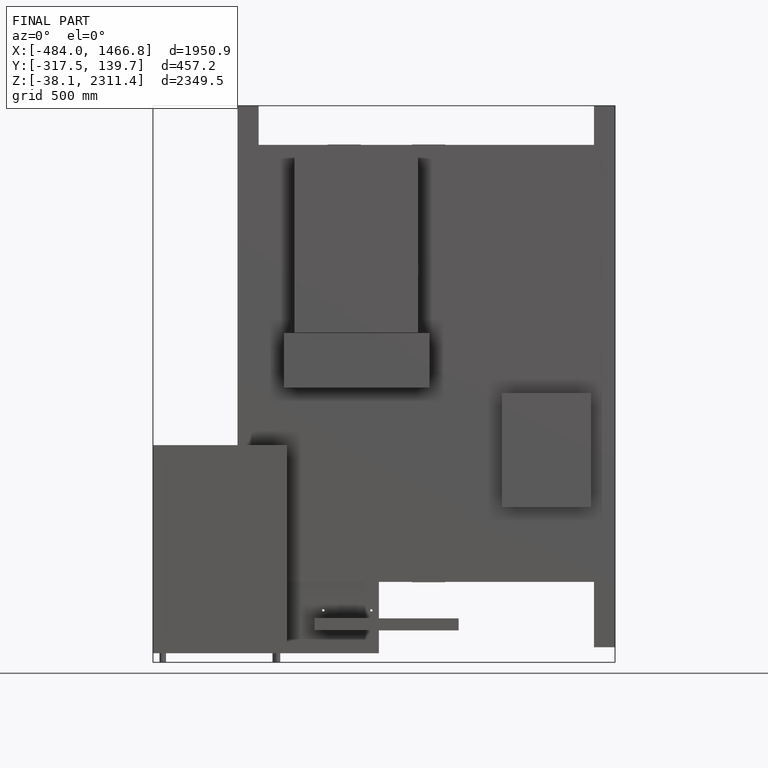
[diagram: finished part — front view with bounding-box wireframe]
